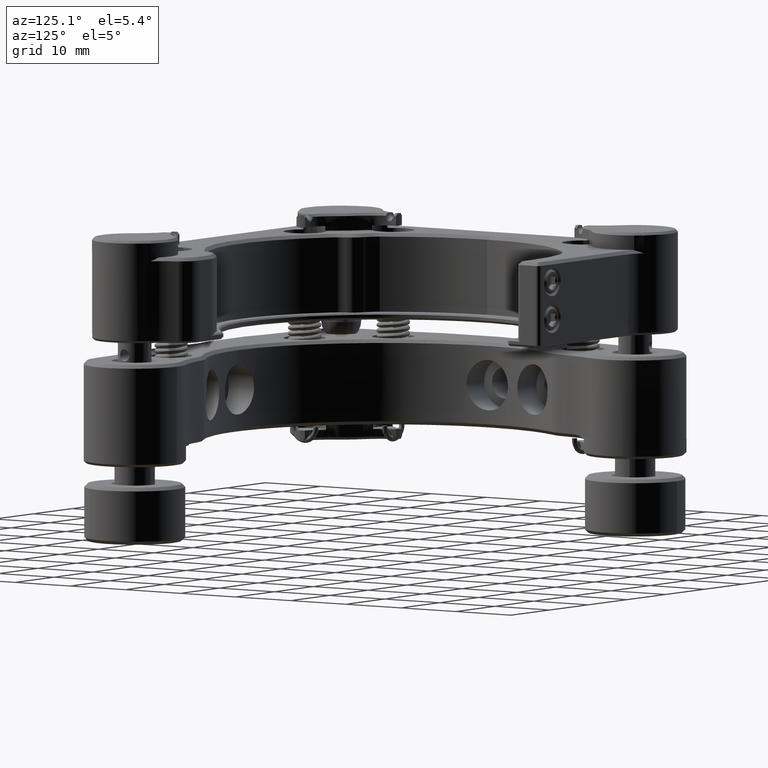
[diagram: clean part render]
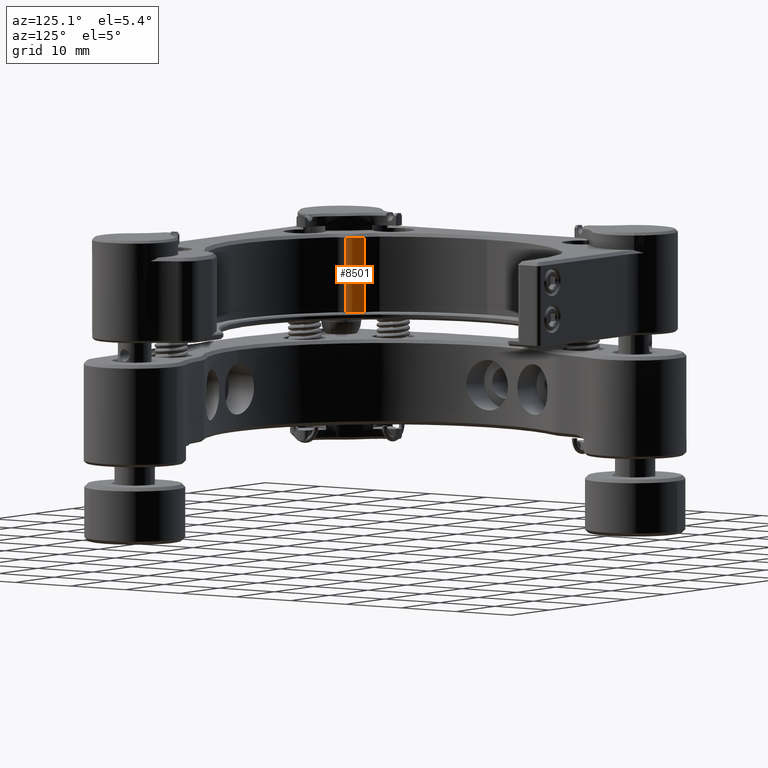
[diagram: same view with one face highlighted and labeled with its STEP entity id]
A machine part, auxiliary view. The second image highlights one B-rep face of the part: STEP entity #8501.
In plain terms, the highlighted cylindrical surface (edge-blend (fillet) strip) has radius 3 mm, axis along (-0, 0, 1).
Its self-contained STEP definition (entity closure, byte-faithful):
#1040 = CARTESIAN_POINT ( 'NONE',  ( -23.43713678394122724, 21.46714300433859535, 40.77856876018478971 ) ) ;
#1234 = AXIS2_PLACEMENT_3D ( 'NONE', #14073, #4865, #18595 ) ;
#1404 = CARTESIAN_POINT ( 'NONE',  ( -23.43713678394123079, 21.46714300433859535, 29.57856876018480463 ) ) ;
#2526 = EDGE_CURVE ( 'NONE', #22562, #19641, #9719, .T. ) ;
#3585 = DIRECTION ( 'NONE',  ( -0.000000000000000000, -0.000000000000000000, 1.000000000000000000 ) ) ;
#4865 = DIRECTION ( 'NONE',  ( 0.000000000000000000, 0.000000000000000000, -1.000000000000000000 ) ) ;
#5450 = LINE ( 'NONE', #23104, #22401 ) ;
#5886 = VECTOR ( 'NONE', #3585, 1000.000000000000000 ) ;
#7480 = EDGE_LOOP ( 'NONE', ( #24170, #23417, #23020, #9361 ) ) ;
#7968 = VERTEX_POINT ( 'NONE', #1404 ) ;
#8501 = ADVANCED_FACE ( 'NONE', ( #22808 ), #24843, .T. ) ;
#9361 = ORIENTED_EDGE ( 'NONE', *, *, #13102, .F. ) ;
#9719 = LINE ( 'NONE', #21101, #5886 ) ;
#9820 = AXIS2_PLACEMENT_3D ( 'NONE', #23750, #10034, #18970 ) ;
#10034 = DIRECTION ( 'NONE',  ( -0.000000000000000000, -0.000000000000000000, -1.000000000000000000 ) ) ;
#11870 = CARTESIAN_POINT ( 'NONE',  ( -20.58159858740793524, 20.54741390936585432, 29.57856876018480463 ) ) ;
#13102 = EDGE_CURVE ( 'NONE', #7968, #22562, #20032, .T. ) ;
#14073 = CARTESIAN_POINT ( 'NONE',  ( -20.58159858740793524, 20.54741390936585432, 116.4490448534842244 ) ) ;
#14350 = DIRECTION ( 'NONE',  ( 0.000000000000000000, 0.000000000000000000, -1.000000000000000000 ) ) ;
#15750 = CARTESIAN_POINT ( 'NONE',  ( -21.50132768238069758, 23.40295210589914632, 29.57856876018480463 ) ) ;
#15807 = DIRECTION ( 'NONE',  ( 1.000000000000000000, 1.156482317317870344E-15, 0.000000000000000000 ) ) ;
#16235 = DIRECTION ( 'NONE',  ( -0.000000000000000000, 0.000000000000000000, -1.000000000000000000 ) ) ;
#16292 = AXIS2_PLACEMENT_3D ( 'NONE', #11870, #16235, #15807 ) ;
#16973 = VERTEX_POINT ( 'NONE', #1040 ) ;
#17031 = EDGE_CURVE ( 'NONE', #16973, #7968, #5450, .T. ) ;
#17550 = CARTESIAN_POINT ( 'NONE',  ( -21.50132768238069758, 23.40295210589914632, 40.77856876018478971 ) ) ;
#18595 = DIRECTION ( 'NONE',  ( 1.000000000000000000, 1.156482317317870344E-15, 0.000000000000000000 ) ) ;
#18970 = DIRECTION ( 'NONE',  ( -1.000000000000000000, -1.156482317317870344E-15, 0.000000000000000000 ) ) ;
#19641 = VERTEX_POINT ( 'NONE', #17550 ) ;
#20032 = CIRCLE ( 'NONE', #16292, 3.000000000000002665 ) ;
#20082 = CIRCLE ( 'NONE', #9820, 3.000000000000002665 ) ;
#21101 = CARTESIAN_POINT ( 'NONE',  ( -21.50132768238069758, 23.40295210589914632, 116.4490448534842244 ) ) ;
#21201 = EDGE_CURVE ( 'NONE', #16973, #19641, #20082, .T. ) ;
#22401 = VECTOR ( 'NONE', #14350, 1000.000000000000000 ) ;
#22562 = VERTEX_POINT ( 'NONE', #15750 ) ;
#22808 = FACE_OUTER_BOUND ( 'NONE', #7480, .T. ) ;
#23020 = ORIENTED_EDGE ( 'NONE', *, *, #2526, .F. ) ;
#23104 = CARTESIAN_POINT ( 'NONE',  ( -23.43713678394123079, 21.46714300433859535, 116.4490448534842244 ) ) ;
#23417 = ORIENTED_EDGE ( 'NONE', *, *, #21201, .T. ) ;
#23750 = CARTESIAN_POINT ( 'NONE',  ( -20.58159858740793524, 20.54741390936585432, 40.77856876018478971 ) ) ;
#24170 = ORIENTED_EDGE ( 'NONE', *, *, #17031, .F. ) ;
#24843 = CYLINDRICAL_SURFACE ( 'NONE', #1234, 3.000000000000002665 ) ;